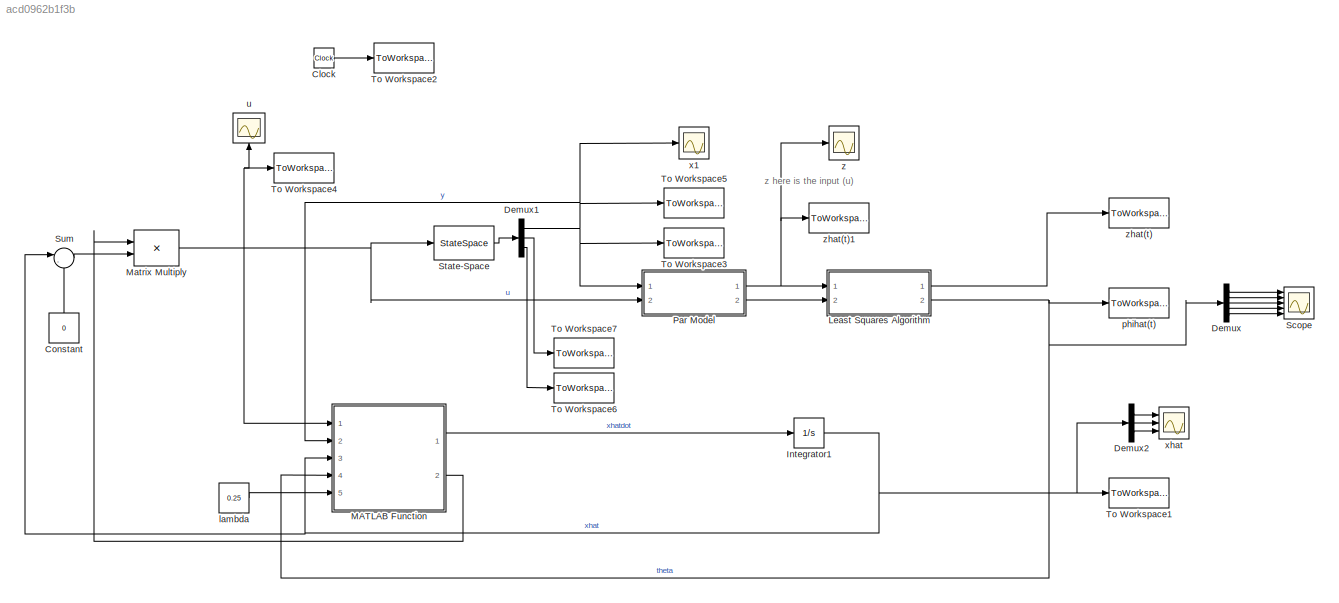
MODEL slx_acd0962b1f3b
KIND model
CONFIG AbsTol = auto
CONFIG EnableMultiTasking = on
CONFIG FixedStep = 0.01
CONFIG MaxStep = 0.1
CONFIG MinStep = 0.001
CONFIG RelTol = 1e-3
CONFIG SampleTimeConstraint = Unconstrained
CONFIG Solver = VariableStepAuto
CONFIG SolverName = VariableStepAuto
CONFIG StartTime = 0
CONFIG StopTime = 30
BLOCK [Clock] Clock
BLOCK [Constant] Constant
  NameLocation = right
  Value = 0
BLOCK [Demux] Demux
  Outputs = 5
  Ports = [1, 5]
BLOCK [Demux] Demux1
  Outputs = 3
  Ports = [1, 3]
BLOCK [Demux] Demux2
  Outputs = 3
  Ports = [1, 3]
BLOCK [Integrator] Integrator1
  InitialCondition = [1;-1;1]
  Ports = [1, 1]
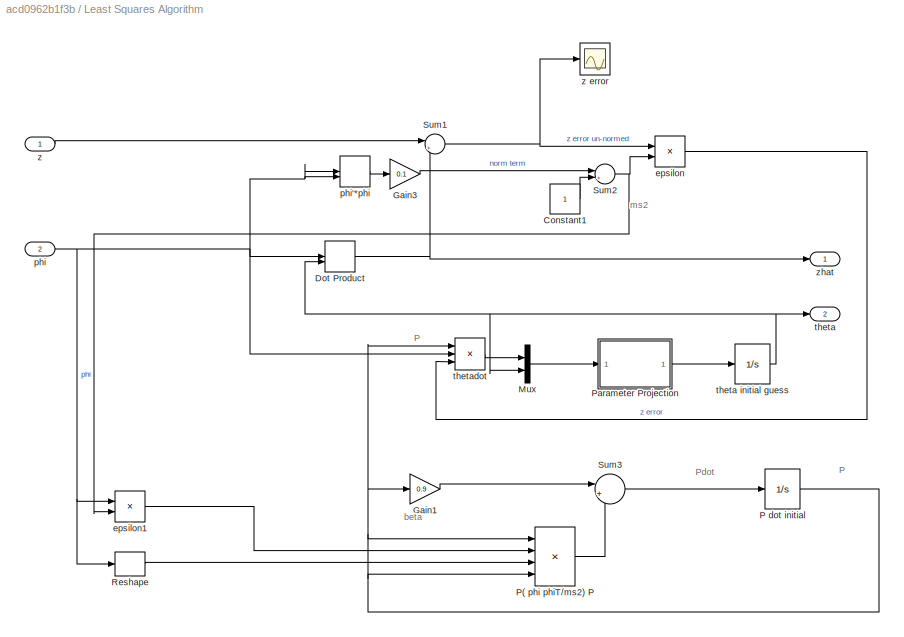
BLOCK [SubSystem] Least Squares Algorithm
  Ports = [2, 2]
  RequestExecContextInheritance = off
  TreatAsAtomicUnit = on
BLOCK [Constant] Least Squares Algorithm/Constant1
BLOCK [DotProduct] Least Squares Algorithm/Dot Product
  OutDataTypeStr = Inherit: Inherit via internal rule
BLOCK [Gain] Least Squares Algorithm/Gain1
  Gain = 0.9
BLOCK [Gain] Least Squares Algorithm/Gain3
  Gain = 0.1
BLOCK [Mux] Least Squares Algorithm/Mux
  DisplayOption = bar
  Inputs = 2
  Ports = [2, 1]
BLOCK [Integrator] Least Squares Algorithm/P dot initial
  InitialCondition = eye(5)
  Ports = [1, 1]
BLOCK [Product] Least Squares Algorithm/P( phi phiT//ms2) P
  Inputs = 4
  Multiplication = Matrix(*)
  Ports = [4, 1]
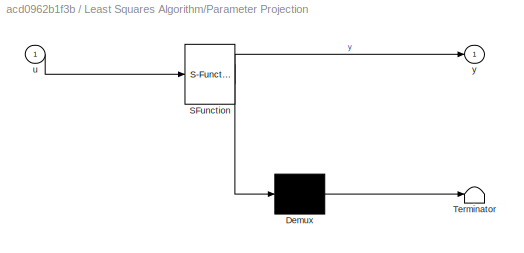
BLOCK [SubSystem] Least Squares Algorithm/Parameter Projection
  ErrorFcn = Stateflow.Translate.translate
  PermitHierarchicalResolution = ExplicitOnly
  Ports = [1, 1]
  RequestExecContextInheritance = off
  SFBlockType = MATLAB Function
  TreatAsAtomicUnit = on
BLOCK [Demux] Least Squares Algorithm/Parameter Projection/ Demux 
  Outputs = 1
  Ports = [1, 1]
BLOCK [S-Function] Least Squares Algorithm/Parameter Projection/ SFunction 
  EnableBusSupport = on
  FunctionName = sf_sfun
  PortCounts = [1 2]
  Ports = [1, 2]
  SFcnIsStateOwnerBlock = off
  SFunctionDeploymentMode = off
  Tag = Stateflow S-Function 1
BLOCK [Terminator] Least Squares Algorithm/Parameter Projection/ Terminator 
BLOCK [Inport] Least Squares Algorithm/Parameter Projection/u
BLOCK [Outport] Least Squares Algorithm/Parameter Projection/y
BLOCK [Reshape] Least Squares Algorithm/Reshape
  OutputDimensionality = Row vector (2-D)
  Ports = [1, 1]
BLOCK [Sum] Least Squares Algorithm/Sum1
  Inputs = |+-
  Ports = [2, 1]
BLOCK [Sum] Least Squares Algorithm/Sum2
  Inputs = |++
  Ports = [2, 1]
BLOCK [Sum] Least Squares Algorithm/Sum3
  Inputs = |+-
  Ports = [2, 1]
BLOCK [Product] Least Squares Algorithm/epsilon
  Inputs = */
  Ports = [2, 1]
BLOCK [Product] Least Squares Algorithm/epsilon1
  Inputs = */
  Ports = [2, 1]
BLOCK [Inport] Least Squares Algorithm/phi
  NameLocation = top
  Port = 2
BLOCK [DotProduct] Least Squares Algorithm/phi'*phi
  OutDataTypeStr = Inherit: Inherit via internal rule
BLOCK [Outport] Least Squares Algorithm/theta
  Port = 2
BLOCK [Integrator] Least Squares Algorithm/theta initial guess
  InitialCondition = [0.01 0.01 0.01 0.01 0.01]
  Ports = [1, 1]
BLOCK [Product] Least Squares Algorithm/thetadot
  Inputs = 3
  Multiplication = Matrix(*)
  Ports = [3, 1]
BLOCK [Inport] Least Squares Algorithm/z
BLOCK [Scope] Least Squares Algorithm/z error
  Floating = off
  NumInputPorts = 1
  Ports = [1]
  ScopeSpecificationString = Simulink.scopes.TimeScopeBlockCfg('CurrentConfiguration', extmgr.ConfigurationSet(extmgr.Configuration('Core','General UI',true),extmgr.Configuration('Core','Source UI',true),extmgr.Configuration('Sources','WiredSimulink',true,'DataLoggingVariableName','ScopeData5'),extmgr.Configuration('Visuals','Time Domain',true,'SerializedDisplays',{struct('MinYLimReal','-32888649824275028270946711257838430203...<+3663ch>
BLOCK [Outport] Least Squares Algorithm/zhat
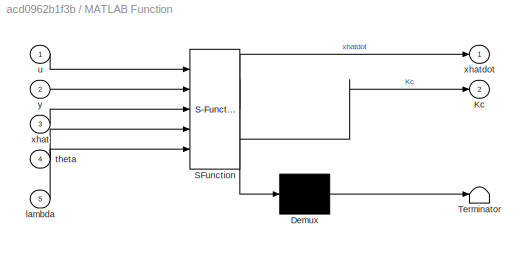
BLOCK [SubSystem] MATLAB Function
  ErrorFcn = Stateflow.Translate.translate
  NameLocation = top
  PermitHierarchicalResolution = ExplicitOnly
  Ports = [5, 2]
  RequestExecContextInheritance = off
  SFBlockType = MATLAB Function
  TreatAsAtomicUnit = on
BLOCK [Demux] MATLAB Function/ Demux 
  Outputs = 1
  Ports = [1, 1]
BLOCK [S-Function] MATLAB Function/ SFunction 
  EnableBusSupport = on
  FunctionName = sf_sfun
  PortCounts = [5 3]
  Ports = [5, 3]
  SFcnIsStateOwnerBlock = off
  SFunctionDeploymentMode = off
  Tag = Stateflow S-Function 3
BLOCK [Terminator] MATLAB Function/ Terminator 
BLOCK [Outport] MATLAB Function/Kc
  Port = 2
BLOCK [Inport] MATLAB Function/lambda
  Port = 5
BLOCK [Inport] MATLAB Function/theta
  Port = 4
BLOCK [Inport] MATLAB Function/u
BLOCK [Inport] MATLAB Function/xhat
  Port = 3
BLOCK [Outport] MATLAB Function/xhatdot
BLOCK [Inport] MATLAB Function/y
  Port = 2
BLOCK [Product] Matrix Multiply
  Multiplication = Matrix(*)
  Ports = [2, 1]
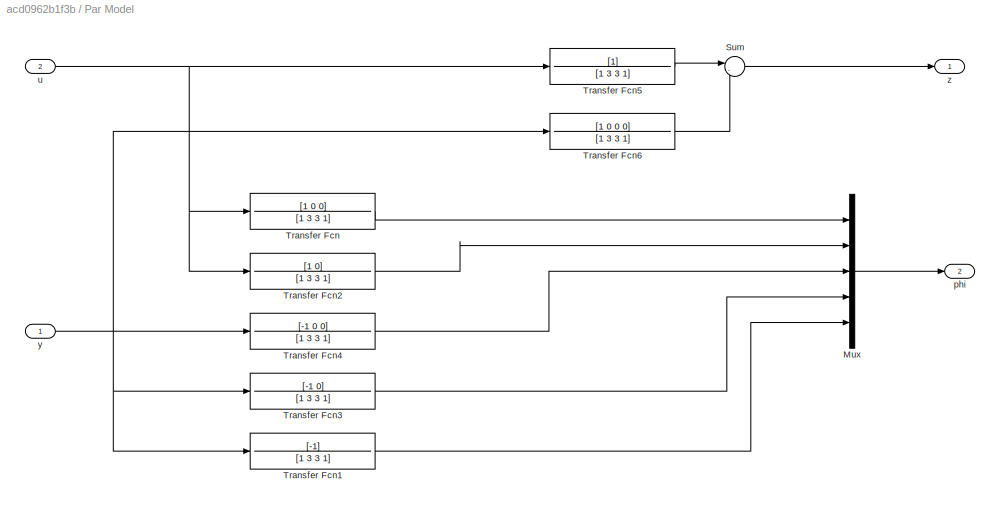
BLOCK [SubSystem] Par Model
  Ports = [2, 2]
  RequestExecContextInheritance = off
  TreatAsAtomicUnit = on
BLOCK [Mux] Par Model/Mux
  DisplayOption = bar
  Inputs = 5
  Ports = [5, 1]
BLOCK [Sum] Par Model/Sum
  Inputs = |-+
  Ports = [2, 1]
BLOCK [TransferFcn] Par Model/Transfer Fcn
  Denominator = [1 3 3 1]
  Numerator = [1 0 0]
BLOCK [TransferFcn] Par Model/Transfer Fcn1
  Denominator = [1 3 3 1]
  Numerator = [-1]
BLOCK [TransferFcn] Par Model/Transfer Fcn2
  Denominator = [1 3 3 1]
  Numerator = [1 0]
BLOCK [TransferFcn] Par Model/Transfer Fcn3
  Denominator = [1 3 3 1]
  Numerator = [-1 0]
BLOCK [TransferFcn] Par Model/Transfer Fcn4
  Denominator = [1 3 3 1]
  Numerator = [-1 0 0]
BLOCK [TransferFcn] Par Model/Transfer Fcn5
  Denominator = [1 3 3 1]
BLOCK [TransferFcn] Par Model/Transfer Fcn6
  Denominator = [1 3 3 1]
  Numerator = [1 0 0 0]
BLOCK [Outport] Par Model/phi
  Port = 2
BLOCK [Inport] Par Model/u
  Port = 2
BLOCK [Inport] Par Model/y
BLOCK [Outport] Par Model/z
BLOCK [Scope] Scope
  Floating = off
  NumInputPorts = 5
  Ports = [5]
  ScopeSpecificationString = Simulink.scopes.TimeScopeBlockCfg('CurrentConfiguration', extmgr.ConfigurationSet(extmgr.Configuration('Core','General UI',true),extmgr.Configuration('Core','Source UI',true),extmgr.Configuration('Sources','WiredSimulink',true,'DataLoggingVariableName','ScopeData1'),extmgr.Configuration('Visuals','Time Domain',true,'SerializedDisplays',{struct('MinYLimReal','-1.76125','MaxYLimReal','2.77587','YLab...<+1433ch>
BLOCK [StateSpace] State-Space
  A = [0.5 1 0 ;1 0 1; -0.5 0 0]
  B = [2;2;1]
  C = [1 0 0;0 1 0; 0 0 1]
  D = [0;0;0]
  InitialCondition = [1;-1;1]
  Ports = [1, 1]
BLOCK [Sum] Sum
  Inputs = |-+
  Ports = [2, 1]
BLOCK [ToWorkspace] To Workspace1
  MaxDataPoints = inf
  Ports = [1]
  SampleTime = -1
  VariableName = xhat
BLOCK [ToWorkspace] To Workspace2
  MaxDataPoints = inf
  Ports = [1]
  SampleTime = -1
  VariableName = t
BLOCK [ToWorkspace] To Workspace3
  MaxDataPoints = inf
  Ports = [1]
  SampleTime = -1
  VariableName = x1
BLOCK [ToWorkspace] To Workspace4
  MaxDataPoints = inf
  Ports = [1]
  SampleTime = -1
  VariableName = u
BLOCK [ToWorkspace] To Workspace5
  MaxDataPoints = inf
  Ports = [1]
  SampleTime = -1
  VariableName = y
BLOCK [ToWorkspace] To Workspace6
  MaxDataPoints = inf
  Ports = [1]
  SampleTime = -1
  VariableName = x3
BLOCK [ToWorkspace] To Workspace7
  MaxDataPoints = inf
  Ports = [1]
  SampleTime = -1
  VariableName = x2
BLOCK [Constant] lambda
  Value = 0.25
BLOCK [ToWorkspace] phihat(t)
  MaxDataPoints = inf
  Ports = [1]
  SampleTime = -1
  VariableName = theta
BLOCK [Scope] u
  Floating = off
  NameLocation = right
  NumInputPorts = 1
  Ports = [1]
  ScopeSpecificationString = Simulink.scopes.TimeScopeBlockCfg('CurrentConfiguration', extmgr.ConfigurationSet(extmgr.Configuration('Core','General UI',true),extmgr.Configuration('Core','Source UI',true),extmgr.Configuration('Sources','WiredSimulink',true,'DataLoggingVariableName','ScopeData4'),extmgr.Configuration('Visuals','Time Domain',true,'SerializedDisplays',{struct('MinYLimReal','-36636994482619156484320037616376119678...<+3670ch>
BLOCK [Scope] x1
  Floating = off
  NumInputPorts = 1
  Ports = [1]
  ScopeSpecificationString = Simulink.scopes.TimeScopeBlockCfg('CurrentConfiguration', extmgr.ConfigurationSet(extmgr.Configuration('Core','General UI',true),extmgr.Configuration('Core','Source UI',true),extmgr.Configuration('Sources','WiredSimulink',true,'DataLoggingVariableName','ScopeData2'),extmgr.Configuration('Visuals','Time Domain',true,'SerializedDisplays',{struct('MinYLimReal','-19.06651','MaxYLimReal','18.70836','YL...<+1398ch>
BLOCK [Scope] xhat
  Floating = off
  NumInputPorts = 3
  Ports = [3]
  ScopeSpecificationString = Simulink.scopes.TimeScopeBlockCfg('CurrentConfiguration', extmgr.ConfigurationSet(extmgr.Configuration('Core','General UI',true),extmgr.Configuration('Core','Source UI',true),extmgr.Configuration('Sources','WiredSimulink',true,'DataLoggingVariableName','ScopeData2'),extmgr.Configuration('Visuals','Time Domain',true,'SerializedDisplays',{struct('MinYLimReal','-1.68515','MaxYLimReal','1.29835','YLab...<+1418ch>
BLOCK [Scope] z
  Floating = off
  NumInputPorts = 1
  Ports = [1]
  ScopeSpecificationString = Simulink.scopes.TimeScopeBlockCfg('CurrentConfiguration', extmgr.ConfigurationSet(extmgr.Configuration('Core','General UI',true),extmgr.Configuration('Core','Source UI',true),extmgr.Configuration('Sources','WiredSimulink',true,'DataLoggingVariableName','ScopeData3'),extmgr.Configuration('Visuals','Time Domain',true,'SerializedDisplays',{struct('MinYLimReal','-0.07716','MaxYLimReal','0.11675','YLab...<+1405ch>
BLOCK [ToWorkspace] zhat(t)
  MaxDataPoints = inf
  Ports = [1]
  SampleTime = -1
  VariableName = zhat
BLOCK [ToWorkspace] zhat(t)1
  MaxDataPoints = inf
  Ports = [1]
  SampleTime = -1
  VariableName = z
ANNOTATION (root): z here is the input (u)
ANNOTATION Least Squares Algorithm: P
ANNOTATION Least Squares Algorithm: Pdot
ANNOTATION Least Squares Algorithm: beta
ANNOTATION Least Squares Algorithm: ms2
LINE Clock:1 -> To Workspace2:1
LINE Constant:1 -> Sum:2
NET Demux1:1 -> MATLAB Function:2, Par Model:1, To Workspace3:1, To Workspace5:1, x1:1
LINE Demux1:2 -> To Workspace7:1
LINE Demux1:3 -> To Workspace6:1
LINE Demux2:1 -> xhat:1
LINE Demux2:2 -> xhat:2
LINE Demux2:3 -> xhat:3
LINE Demux:1 -> Scope:1
LINE Demux:2 -> Scope:2
LINE Demux:3 -> Scope:3
LINE Demux:4 -> Scope:4
LINE Demux:5 -> Scope:5
NET Integrator1:1 -> Demux2:1, MATLAB Function:3, Sum:1, To Workspace1:1
LINE Least Squares Algorithm/Constant1:1 -> Least Squares Algorithm/Sum2:2
NET Least Squares Algorithm/Dot Product:1 -> Least Squares Algorithm/Sum1:2, Least Squares Algorithm/zhat:1
LINE Least Squares Algorithm/Gain1:1 -> Least Squares Algorithm/Sum3:1
LINE Least Squares Algorithm/Gain3:1 -> Least Squares Algorithm/Sum2:1
LINE Least Squares Algorithm/Mux:1 -> Least Squares Algorithm/Parameter Projection:1
NET Least Squares Algorithm/P dot initial:1 -> Least Squares Algorithm/Gain1:1, Least Squares Algorithm/P( phi phiT//ms2) P:1, Least Squares Algorithm/P( phi phiT//ms2) P:4, Least Squares Algorithm/thetadot:1
LINE Least Squares Algorithm/P( phi phiT//ms2) P:1 -> Least Squares Algorithm/Sum3:2
LINE Least Squares Algorithm/Parameter Projection:1 -> Least Squares Algorithm/theta initial guess:1
LINE Least Squares Algorithm/Reshape:1 -> Least Squares Algorithm/P( phi phiT//ms2) P:3
NET Least Squares Algorithm/Sum1:1 -> Least Squares Algorithm/epsilon:1, Least Squares Algorithm/z error:1
NET Least Squares Algorithm/Sum2:1 -> Least Squares Algorithm/epsilon1:2, Least Squares Algorithm/epsilon:2
LINE Least Squares Algorithm/Sum3:1 -> Least Squares Algorithm/P dot initial:1
LINE Least Squares Algorithm/epsilon1:1 -> Least Squares Algorithm/P( phi phiT//ms2) P:2
LINE Least Squares Algorithm/epsilon:1 -> Least Squares Algorithm/thetadot:3
LINE Least Squares Algorithm/phi'*phi:1 -> Least Squares Algorithm/Gain3:1
NET Least Squares Algorithm/phi:1 -> Least Squares Algorithm/Dot Product:1, Least Squares Algorithm/Reshape:1, Least Squares Algorithm/epsilon1:1, Least Squares Algorithm/phi'*phi:1, Least Squares Algorithm/phi'*phi:2, Least Squares Algorithm/thetadot:2
NET Least Squares Algorithm/theta initial guess:1 -> Least Squares Algorithm/Dot Product:2, Least Squares Algorithm/Mux:2, Least Squares Algorithm/theta:1
LINE Least Squares Algorithm/thetadot:1 -> Least Squares Algorithm/Mux:1
LINE Least Squares Algorithm/z:1 -> Least Squares Algorithm/Sum1:1
LINE Least Squares Algorithm:1 -> zhat(t):1
NET Least Squares Algorithm:2 -> Demux:1, MATLAB Function:4, phihat(t):1
LINE MATLAB Function:1 -> Integrator1:1
LINE MATLAB Function:2 -> Matrix Multiply:1
NET Matrix Multiply:1 -> MATLAB Function:1, Par Model:2, State-Space:1, To Workspace4:1, u:1
LINE Par Model/Mux:1 -> Par Model/phi:1
LINE Par Model/Sum:1 -> Par Model/z:1
LINE Par Model/Transfer Fcn1:1 -> Par Model/Mux:5
LINE Par Model/Transfer Fcn2:1 -> Par Model/Mux:2
LINE Par Model/Transfer Fcn3:1 -> Par Model/Mux:4
LINE Par Model/Transfer Fcn4:1 -> Par Model/Mux:3
LINE Par Model/Transfer Fcn5:1 -> Par Model/Sum:1
LINE Par Model/Transfer Fcn6:1 -> Par Model/Sum:2
LINE Par Model/Transfer Fcn:1 -> Par Model/Mux:1
NET Par Model/u:1 -> Par Model/Transfer Fcn2:1, Par Model/Transfer Fcn5:1, Par Model/Transfer Fcn:1
NET Par Model/y:1 -> Par Model/Transfer Fcn1:1, Par Model/Transfer Fcn3:1, Par Model/Transfer Fcn4:1, Par Model/Transfer Fcn6:1
NET Par Model:1 -> Least Squares Algorithm:1, z:1, zhat(t)1:1
LINE Par Model:2 -> Least Squares Algorithm:2
LINE State-Space:1 -> Demux1:1
LINE Sum:1 -> Matrix Multiply:2
LINE lambda:1 -> MATLAB Function:5
note: NET lines group one-source signal fan-out (src -> all destinations, sorted); 1:1 wires keep LINE
CHART Least Squares Algorithm/Parameter Projection states=1 transitions=1
  STATE_LABEL 'eML_blk_kernel()'
  STATE_LABEL 'SCRIPT:\nfunction y = fcn(u)\n%#codegen\nn=5;\n% lower bound b2 and b1 with 0\nlb=[0 0 -1000 -1000 -1000];\nub=[1000 1000 1000 1000 1000];\nu=u(:);\nthetadot=u(1:n);\ntheta=u((n+1):(2*n));\ny = thetadot;\nfor k=1:n,\n    if (theta(k)<=lb(k)) & (thetadot(k)<0),\n        y(k)=0;\n    elseif (theta(k)>=ub(k)) & (thetadot(k)>0),\n        y(k)=0;\n    end\nend\n\n'
CHART MATLAB Function states=1 transitions=1
  STATE_LABEL 'eML_blk_kernel()'
  STATE_LABEL "SCRIPT:\nfunction [xhatdot, Kc] = fcn(u,y,xhat,theta,lambda)\n\nb2=theta(1);\nb1=theta(2);\na2=theta(3);\na1=theta(4);\na0=theta(5);\n\nKo=[12-a2;48-a1;64-a0];\nA=[-a2 1 0; -a1 0 1; -a0 0 0];\nB=[b2; b1; 1];\n% have xhat(1) here because C = [1 0 0]\nxhatdot=A*xhat+B*u+Ko*(y-xhat(1));\n\ncoder.extrinsic('icare');\nC = [1 0 0];\nP = zeros(3,3);\nQ = C*C';\nKc = [1 1 1];\n\n[P,~,~] = icare(A, B, Q, lambda, zeros(3,1), ey...<+45ch>"
CHART  states=0 transitions=0
CHART  states=0 transitions=0
